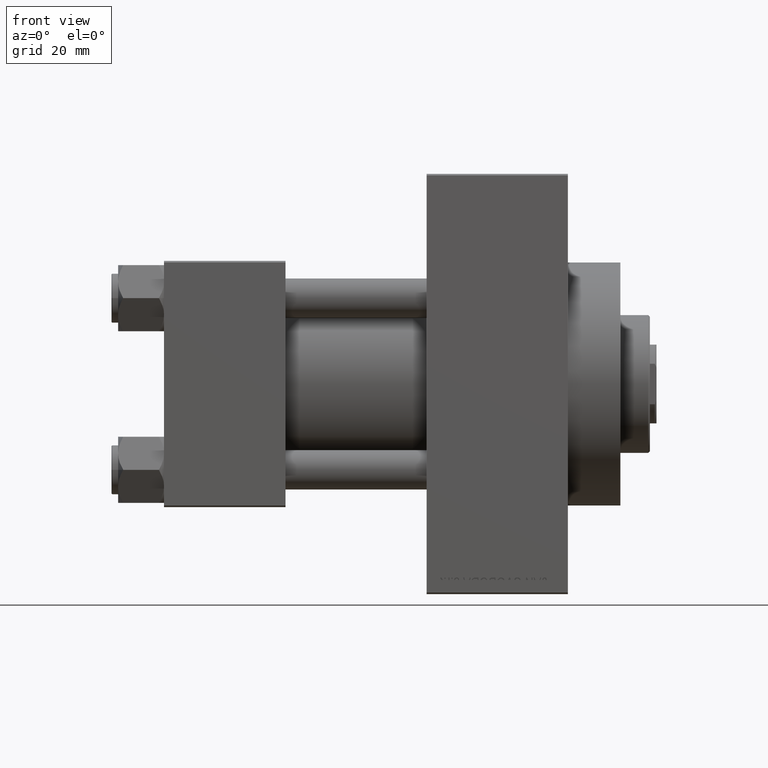
[diagram: clean part render]
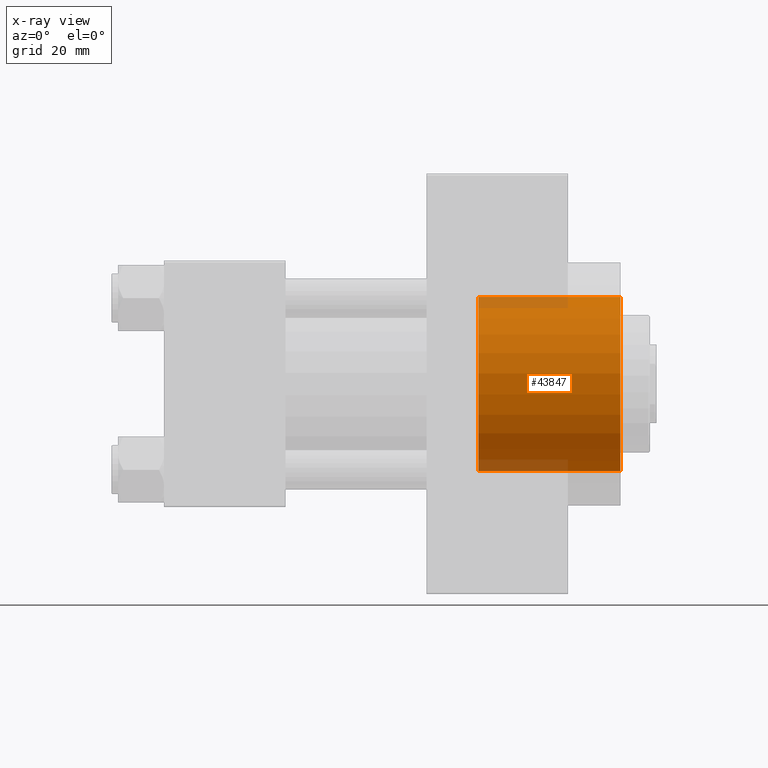
[diagram: x-ray — body ghosted, one internal face saturated and labeled with its STEP entity id]
A machine part, front view, then the same camera in x-ray: the body is ghosted and one INTERNAL B-rep face — a face not visible from any outside direction — is saturated and labeled: STEP entity #43847.
In plain terms, the highlighted cylindrical surface (partial cylindrical patch) has radius 26.5 mm, axis along (1, 0, 0).
Its self-contained STEP definition (entity closure, byte-faithful):
#1863 = AXIS2_PLACEMENT_3D ( 'NONE', #26125, #7763, #29708 ) ;
#3675 = CARTESIAN_POINT ( 'NONE',  ( 138.9999999999999716, 3.245314017740486554E-15, 26.50000000000000355 ) ) ;
#4126 = CARTESIAN_POINT ( 'NONE',  ( 95.73999999999999488, 3.245314017740486554E-15, 26.50000000000000355 ) ) ;
#6516 = CARTESIAN_POINT ( 'NONE',  ( 95.73999999999999488, 0.000000000000000000, 0.000000000000000000 ) ) ;
#6789 = DIRECTION ( 'NONE',  ( 1.000000000000000000, -0.000000000000000000, -0.000000000000000000 ) ) ;
#7398 = VECTOR ( 'NONE', #6789, 1000.000000000000000 ) ;
#7490 = ORIENTED_EDGE ( 'NONE', *, *, #46468, .F. ) ;
#7763 = DIRECTION ( 'NONE',  ( 1.000000000000000000, 0.000000000000000000, 0.000000000000000000 ) ) ;
#8042 = AXIS2_PLACEMENT_3D ( 'NONE', #8850, #41075, #12898 ) ;
#8850 = CARTESIAN_POINT ( 'NONE',  ( 138.9999999999999716, 0.000000000000000000, 0.000000000000000000 ) ) ;
#9867 = CYLINDRICAL_SURFACE ( 'NONE', #34005, 26.50000000000000355 ) ;
#12898 = DIRECTION ( 'NONE',  ( 0.000000000000000000, 0.000000000000000000, -1.000000000000000000 ) ) ;
#13196 = FACE_OUTER_BOUND ( 'NONE', #30839, .T. ) ;
#17706 = EDGE_CURVE ( 'NONE', #46259, #46852, #20938, .T. ) ;
#18674 = DIRECTION ( 'NONE',  ( 1.000000000000000000, -0.000000000000000000, -0.000000000000000000 ) ) ;
#19048 = CARTESIAN_POINT ( 'NONE',  ( 95.73999999999999488, 0.000000000000000000, -26.50000000000000355 ) ) ;
#20658 = VERTEX_POINT ( 'NONE', #29350 ) ;
#20938 = CIRCLE ( 'NONE', #1863, 26.50000000000000355 ) ;
#22292 = EDGE_CURVE ( 'NONE', #46259, #32590, #36831, .T. ) ;
#25329 = DIRECTION ( 'NONE',  ( 0.000000000000000000, 0.000000000000000000, -1.000000000000000000 ) ) ;
#26125 = CARTESIAN_POINT ( 'NONE',  ( 95.73999999999999488, 0.000000000000000000, 0.000000000000000000 ) ) ;
#29350 = CARTESIAN_POINT ( 'NONE',  ( 138.9999999999999716, 0.000000000000000000, -26.50000000000000355 ) ) ;
#29612 = CARTESIAN_POINT ( 'NONE',  ( 95.73999999999999488, 0.000000000000000000, -26.50000000000000355 ) ) ;
#29708 = DIRECTION ( 'NONE',  ( 0.000000000000000000, 0.000000000000000000, -1.000000000000000000 ) ) ;
#30145 = CIRCLE ( 'NONE', #8042, 26.50000000000000355 ) ;
#30839 = EDGE_LOOP ( 'NONE', ( #39516, #41208, #41725, #7490 ) ) ;
#32043 = DIRECTION ( 'NONE',  ( 1.000000000000000000, -0.000000000000000000, -0.000000000000000000 ) ) ;
#32590 = VERTEX_POINT ( 'NONE', #3675 ) ;
#33436 = LINE ( 'NONE', #29612, #7398 ) ;
#34005 = AXIS2_PLACEMENT_3D ( 'NONE', #6516, #32043, #25329 ) ;
#36333 = VECTOR ( 'NONE', #18674, 1000.000000000000000 ) ;
#36831 = LINE ( 'NONE', #4126, #36333 ) ;
#37132 = CARTESIAN_POINT ( 'NONE',  ( 95.73999999999999488, 3.245314017740486554E-15, 26.50000000000000355 ) ) ;
#39516 = ORIENTED_EDGE ( 'NONE', *, *, #17706, .F. ) ;
#41075 = DIRECTION ( 'NONE',  ( 1.000000000000000000, 0.000000000000000000, 0.000000000000000000 ) ) ;
#41208 = ORIENTED_EDGE ( 'NONE', *, *, #22292, .T. ) ;
#41725 = ORIENTED_EDGE ( 'NONE', *, *, #43260, .T. ) ;
#43260 = EDGE_CURVE ( 'NONE', #32590, #20658, #30145, .T. ) ;
#43847 = ADVANCED_FACE ( 'NONE', ( #13196 ), #9867, .F. ) ;
#46259 = VERTEX_POINT ( 'NONE', #37132 ) ;
#46468 = EDGE_CURVE ( 'NONE', #46852, #20658, #33436, .T. ) ;
#46852 = VERTEX_POINT ( 'NONE', #19048 ) ;